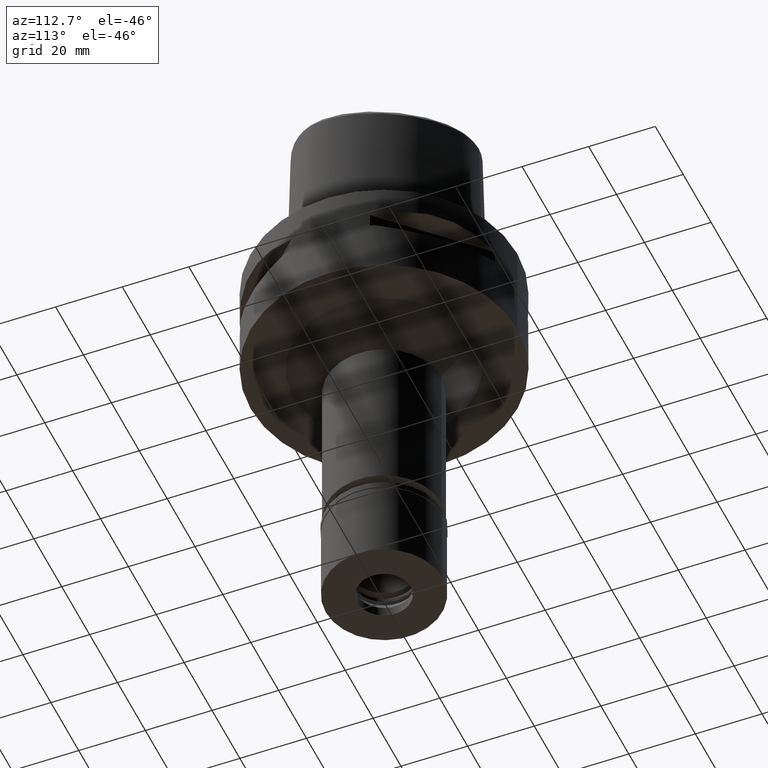
[diagram: clean part render]
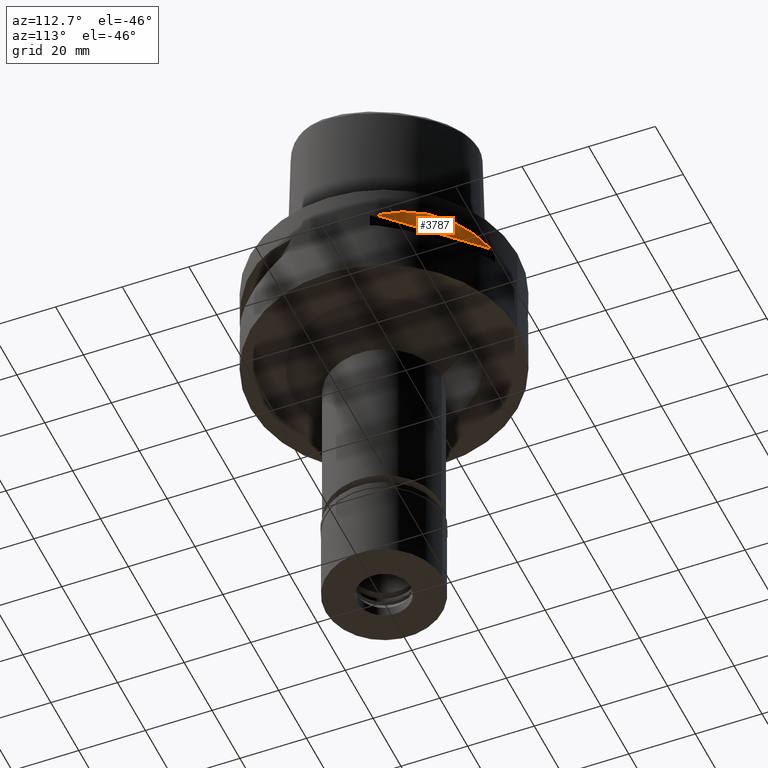
[diagram: same view with one face highlighted and labeled with its STEP entity id]
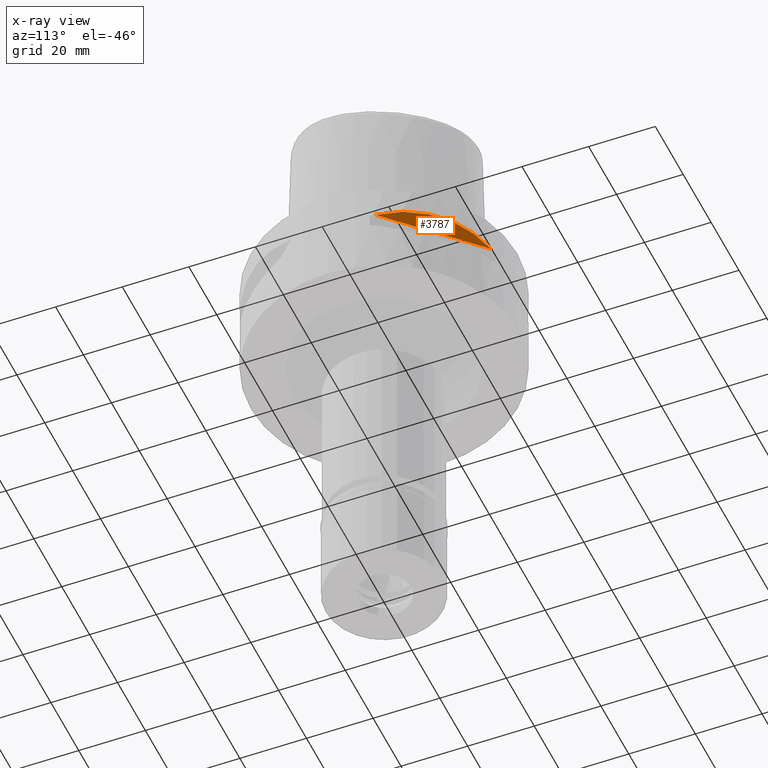
[diagram: x-ray of the same camera — body ghosted, the highlighted face saturated]
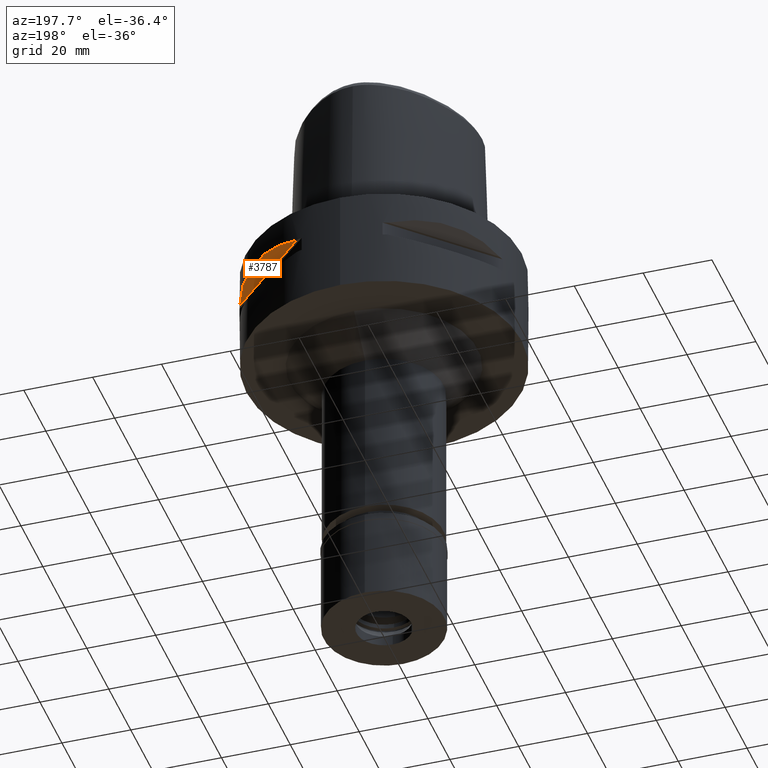
[diagram: same view with one face highlighted and labeled with its STEP entity id]
A machine part, auxiliary view. The second image highlights one B-rep face of the part: STEP entity #3787.
The next image is the same camera in x-ray: the body ghosted, the highlighted face saturated — about 0% of this face is hidden behind the body in this view.
A second angle (auxiliary view) of the same face is appended — the face is thin or edge-on in the first view.
In plain terms, the highlighted planar face has unit normal (-0.3536, -0.3536, 0.866).
Its self-contained STEP definition (entity closure, byte-faithful):
#124 = AXIS2_PLACEMENT_3D ( 'NONE', #4808, #1255, #2527 ) ;
#587 = CARTESIAN_POINT ( 'NONE',  ( 26.20795918968520866, 30.36058330523860960, -7.669863843575455142 ) ) ;
#968 = CARTESIAN_POINT ( 'NONE',  ( 30.36058330523851367, 26.20795918968530813, -7.669882118585189090 ) ) ;
#969 = VERTEX_POINT ( 'NONE', #4265 ) ;
#1255 = DIRECTION ( 'NONE',  ( -0.3535533905933054277, -0.3535533905933054277, 0.8660254037844128394 ) ) ;
#1451 = CARTESIAN_POINT ( 'NONE',  ( 13.23717311056000057, 37.74622163926999718, -9.950000000002001244 ) ) ;
#1701 = CARTESIAN_POINT ( 'NONE',  ( 37.74622163926999718, 13.23717311056000057, -9.950000000000999378 ) ) ;
#1797 = CARTESIAN_POINT ( 'NONE',  ( 18.83182902082666743, 35.41591128510520292, -8.619912199373716888 ) ) ;
#2108 = FACE_OUTER_BOUND ( 'NONE', #4934, .T. ) ;
#2124 = ORIENTED_EDGE ( 'NONE', *, *, #3618, .T. ) ;
#2527 = DIRECTION ( 'NONE',  ( -0.7071067811865475727, 0.7071067811865475727, 0.0000000000000000000 ) ) ;
#2624 = CARTESIAN_POINT ( 'NONE',  ( 23.88364259926272481, 32.22570670466008380, -7.859869859733159991 ) ) ;
#2836 = DIRECTION ( 'NONE',  ( -0.7071067811865474617, 0.7071067811865474617, 0.0000000000000000000 ) ) ;
#2965 = CARTESIAN_POINT ( 'NONE',  ( 32.22577213862145840, 23.88355431031446230, -7.859897272588792561 ) ) ;
#2987 = CARTESIAN_POINT ( 'NONE',  ( 16.10442380453151401, 36.74070924255632775, -9.189948522856571600 ) ) ;
#3226 = PLANE ( 'NONE',  #124 ) ;
#3399 = CARTESIAN_POINT ( 'NONE',  ( 35.41596287858687475, 18.83173199168491507, -8.619939612229350345 ) ) ;
#3618 = EDGE_CURVE ( 'NONE', #969, #4203, #4450, .T. ) ;
#3765 = CARTESIAN_POINT ( 'NONE',  ( 37.74622163926999718, 13.23717311056000057, -9.950000000002001244 ) ) ;
#3787 = ADVANCED_FACE ( 'NONE', ( #2108 ), #3226, .F. ) ;
#3806 = EDGE_CURVE ( 'NONE', #969, #4203, #4858, .T. ) ;
#4158 = CARTESIAN_POINT ( 'NONE',  ( 36.74073341983645236, 16.10435486224558943, -9.189966798093664124 ) ) ;
#4203 = VERTEX_POINT ( 'NONE', #1451 ) ;
#4265 = CARTESIAN_POINT ( 'NONE',  ( 37.74622163926999718, 13.23717311056000057, -9.950000000002001244 ) ) ;
#4430 = VECTOR ( 'NONE', #2836, 1000.000000000000114 ) ;
#4450 = LINE ( 'NONE', #1701, #4430 ) ;
#4544 = CARTESIAN_POINT ( 'NONE',  ( 13.23717311056000057, 37.74622163926999718, -9.950000000002001244 ) ) ;
#4808 = CARTESIAN_POINT ( 'NONE',  ( 11.66726188958000066, 47.02260094891000364, -6.803847577293001159 ) ) ;
#4858 = B_SPLINE_CURVE_WITH_KNOTS ( 'NONE', 3,
 ( #3765, #4158, #3399, #2965, #968, #587, #2624, #1797, #2987, #4544 ),
 .UNSPECIFIED., .F., .F.,
 ( 4, 2, 2, 2, 4 ),
 ( 0.0000000000000000000, 0.2499999999999997780, 0.4999999999999995559, 0.7499999999999997780, 1.000000000000000000 ),
 .UNSPECIFIED. ) ;
#4922 = ORIENTED_EDGE ( 'NONE', *, *, #3806, .F. ) ;
#4934 = EDGE_LOOP ( 'NONE', ( #2124, #4922 ) ) ;